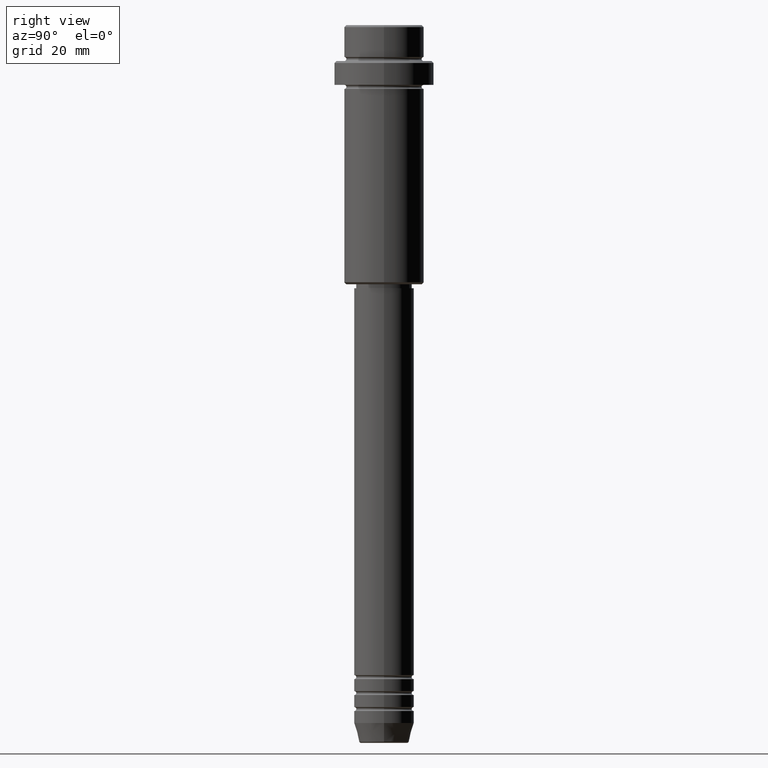
[diagram: clean part render]
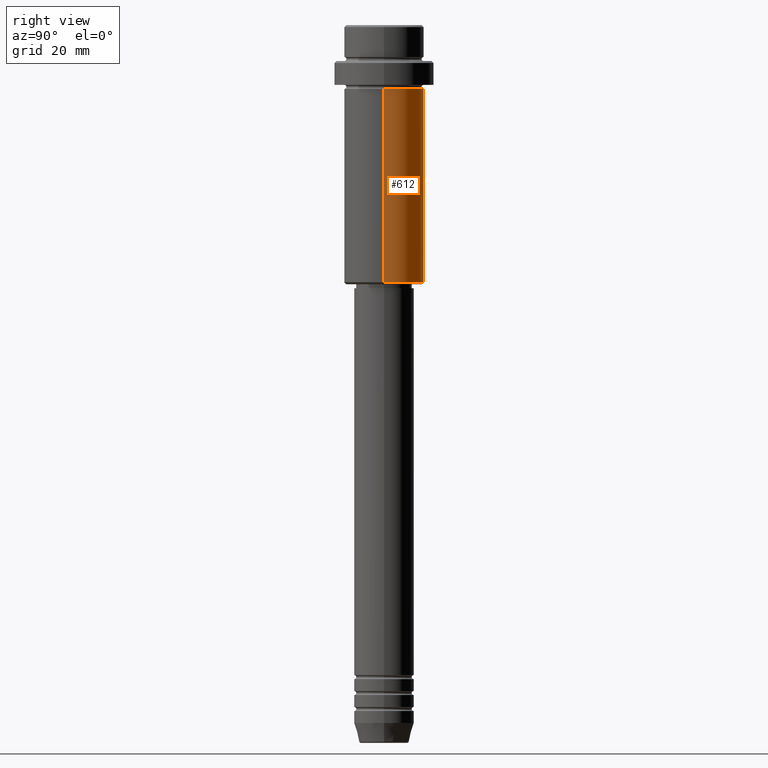
[diagram: same view with one face highlighted and labeled with its STEP entity id]
A machine part, right view. The second image highlights one B-rep face of the part: STEP entity #612.
In plain terms, the highlighted cylindrical surface (partial cylindrical patch) has radius 10 mm, axis along (-0, -0, 1).
Its self-contained STEP definition (entity closure, byte-faithful):
#46 = CARTESIAN_POINT ( 'NONE',  ( 0.000000000000000000, 0.000000000000000000, -16.00000000000000000 ) ) ;
#58 = CARTESIAN_POINT ( 'NONE',  ( 10.00000000000000000, 0.000000000000000000, -16.00000000000000000 ) ) ;
#64 = FACE_OUTER_BOUND ( 'NONE', #707, .T. ) ;
#74 = VECTOR ( 'NONE', #948, 1000.000000000000000 ) ;
#216 = EDGE_CURVE ( 'NONE', #1302, #512, #761, .T. ) ;
#311 = CARTESIAN_POINT ( 'NONE',  ( 0.000000000000000000, 0.000000000000000000, -64.50000000000000000 ) ) ;
#312 = ORIENTED_EDGE ( 'NONE', *, *, #961, .F. ) ;
#337 = CARTESIAN_POINT ( 'NONE',  ( 10.00000000000000000, 0.000000000000000000, 0.000000000000000000 ) ) ;
#363 = EDGE_CURVE ( 'NONE', #1129, #1338, #1287, .T. ) ;
#393 = CARTESIAN_POINT ( 'NONE',  ( 0.000000000000000000, 0.000000000000000000, 0.000000000000000000 ) ) ;
#481 = CARTESIAN_POINT ( 'NONE',  ( -10.00000000000000000, 1.224646799147353256E-15, 0.000000000000000000 ) ) ;
#484 = ORIENTED_EDGE ( 'NONE', *, *, #636, .T. ) ;
#490 = DIRECTION ( 'NONE',  ( 1.000000000000000000, 0.000000000000000000, 0.000000000000000000 ) ) ;
#497 = AXIS2_PLACEMENT_3D ( 'NONE', #311, #1121, #1304 ) ;
#512 = VERTEX_POINT ( 'NONE', #1241 ) ;
#547 = ORIENTED_EDGE ( 'NONE', *, *, #216, .T. ) ;
#584 = DIRECTION ( 'NONE',  ( -0.000000000000000000, -0.000000000000000000, 1.000000000000000000 ) ) ;
#612 = ADVANCED_FACE ( 'NONE', ( #64 ), #1048, .T. ) ;
#620 = AXIS2_PLACEMENT_3D ( 'NONE', #46, #584, #800 ) ;
#633 = LINE ( 'NONE', #481, #74 ) ;
#636 = EDGE_CURVE ( 'NONE', #512, #1338, #633, .T. ) ;
#707 = EDGE_LOOP ( 'NONE', ( #547, #484, #1307, #312 ) ) ;
#761 = CIRCLE ( 'NONE', #497, 10.00000000000000000 ) ;
#766 = VECTOR ( 'NONE', #1029, 1000.000000000000000 ) ;
#800 = DIRECTION ( 'NONE',  ( 1.000000000000000000, 0.000000000000000000, 0.000000000000000000 ) ) ;
#840 = AXIS2_PLACEMENT_3D ( 'NONE', #393, #849, #490 ) ;
#849 = DIRECTION ( 'NONE',  ( -0.000000000000000000, -0.000000000000000000, 1.000000000000000000 ) ) ;
#903 = CARTESIAN_POINT ( 'NONE',  ( 10.00000000000000000, 0.000000000000000000, -64.50000000000000000 ) ) ;
#948 = DIRECTION ( 'NONE',  ( -0.000000000000000000, -0.000000000000000000, 1.000000000000000000 ) ) ;
#961 = EDGE_CURVE ( 'NONE', #1302, #1129, #1349, .T. ) ;
#1029 = DIRECTION ( 'NONE',  ( -0.000000000000000000, -0.000000000000000000, 1.000000000000000000 ) ) ;
#1048 = CYLINDRICAL_SURFACE ( 'NONE', #840, 10.00000000000000000 ) ;
#1121 = DIRECTION ( 'NONE',  ( -0.000000000000000000, -0.000000000000000000, 1.000000000000000000 ) ) ;
#1126 = CARTESIAN_POINT ( 'NONE',  ( -10.00000000000000000, 1.224646799147353256E-15, -16.00000000000000000 ) ) ;
#1129 = VERTEX_POINT ( 'NONE', #58 ) ;
#1241 = CARTESIAN_POINT ( 'NONE',  ( -10.00000000000000000, 1.224646799147353256E-15, -64.50000000000000000 ) ) ;
#1287 = CIRCLE ( 'NONE', #620, 10.00000000000000000 ) ;
#1302 = VERTEX_POINT ( 'NONE', #903 ) ;
#1304 = DIRECTION ( 'NONE',  ( -1.000000000000000000, 0.000000000000000000, 0.000000000000000000 ) ) ;
#1307 = ORIENTED_EDGE ( 'NONE', *, *, #363, .F. ) ;
#1338 = VERTEX_POINT ( 'NONE', #1126 ) ;
#1349 = LINE ( 'NONE', #337, #766 ) ;